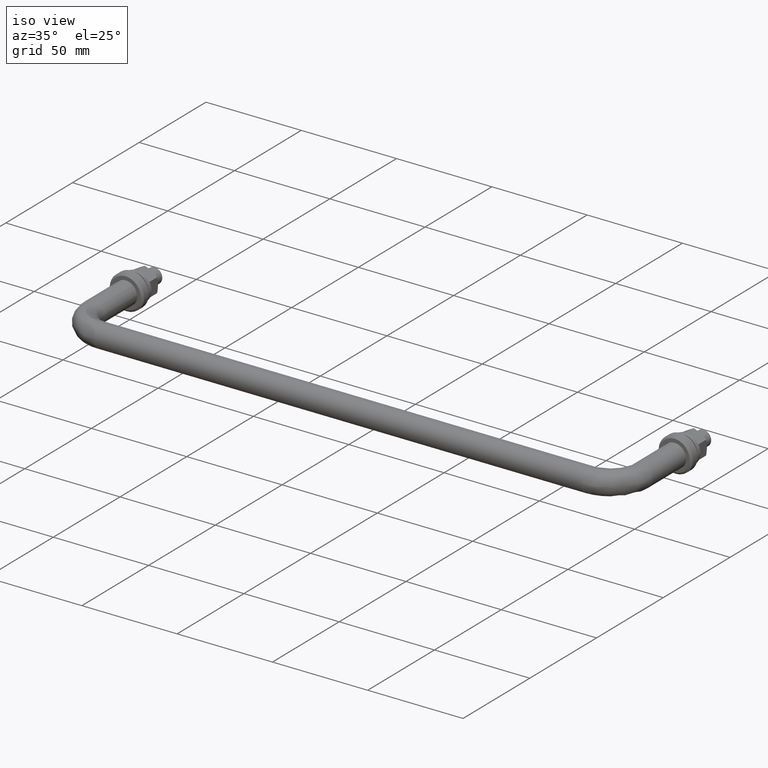
[diagram: clean part render]
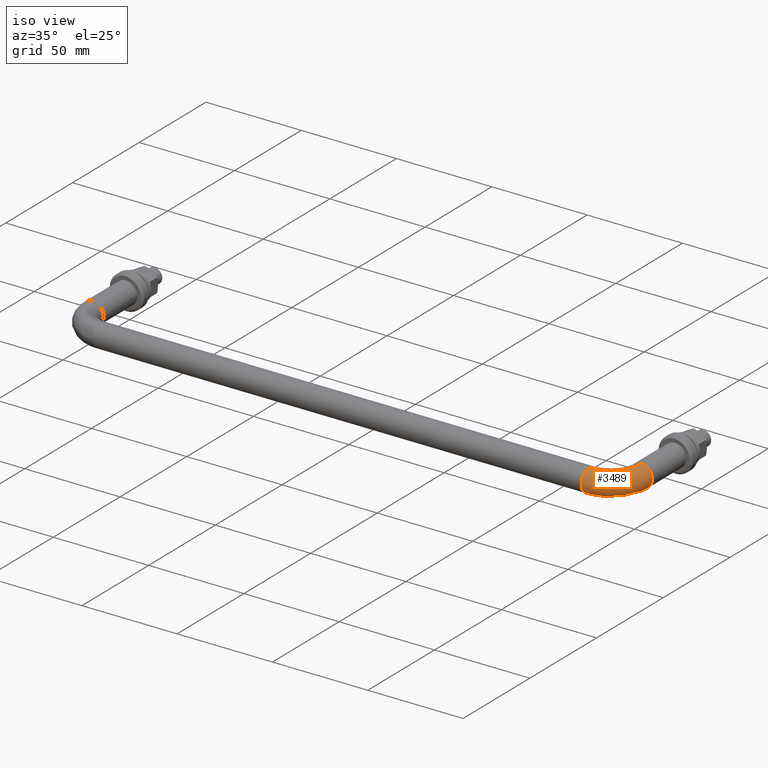
[diagram: same view with one face highlighted and labeled with its STEP entity id]
A machine part, iso view. The second image highlights one B-rep face of the part: STEP entity #3489.
In plain terms, the highlighted face is a freeform B-spline surface patch.
Its self-contained STEP definition (entity closure, byte-faithful):
#2734=CARTESIAN_POINT('',(287.924603757332190,-28.000000002493820,-5.999526265180574));
#2735=VERTEX_POINT('',#2734);
#2736=CARTESIAN_POINT('',(291.735087819832700,-28.0,-4.695648941108911));
#2737=VERTEX_POINT('',#2736);
#2738=CARTESIAN_POINT('',(287.924603757332190,-28.000000002493820,-5.999526265180574));
#2739=CARTESIAN_POINT('',(287.962300388680550,-28.000000000000007,-6.0));
#2740=CARTESIAN_POINT('',(288.0,-28.0,-6.0));
#2741=CARTESIAN_POINT('',(290.095293800539310,-28.000000000000007,-6.0));
#2742=CARTESIAN_POINT('',(291.735087819832700,-28.000000000000007,-4.695648941108911));
#2750=(BOUNDED_CURVE()B_SPLINE_CURVE(2,(#2738,#2739,#2740,#2741,#2742),.UNSPECIFIED.,.F.,.U.)B_SPLINE_CURVE_WITH_KNOTS((3,2,3),(0.247784295724289,0.250000000000000,0.357863877391897),.UNSPECIFIED.)CURVE()GEOMETRIC_REPRESENTATION_ITEM()RATIONAL_B_SPLINE_CURVE((0.994854295189584,0.997404140970993,1.0,0.873629607027950,0.856305618643925))REPRESENTATION_ITEM(''));
#2751=EDGE_CURVE('',#2735,#2737,#2750,.T.);
#2848=CARTESIAN_POINT('',(294.0,-28.0,0.0));
#2849=VERTEX_POINT('',#2848);
#2850=CARTESIAN_POINT('',(291.735087819832700,-28.000000000000004,-4.695648941108912));
#2851=CARTESIAN_POINT('',(294.0,-27.999999999999996,-2.894056444894390));
#2852=CARTESIAN_POINT('',(294.0,-28.0,0.0));
#2860=(BOUNDED_CURVE()B_SPLINE_CURVE(2,(#2850,#2851,#2852),.UNSPECIFIED.,.F.,.U.)B_SPLINE_CURVE_WITH_KNOTS((3,3),(0.357863877391897,0.500000000000000),.UNSPECIFIED.)CURVE()GEOMETRIC_REPRESENTATION_ITEM()RATIONAL_B_SPLINE_CURVE((0.856305618643925,0.833477174158597,1.0))REPRESENTATION_ITEM(''));
#2861=EDGE_CURVE('',#2737,#2849,#2860,.T.);
#2895=CARTESIAN_POINT('',(288.418399516672080,-28.000000001374751,5.985394042537922));
#2896=VERTEX_POINT('',#2895);
#2912=CARTESIAN_POINT('',(294.0,-28.0,0.0));
#2913=CARTESIAN_POINT('',(294.000000000000060,-28.000000000000007,5.595221070068924));
#2914=CARTESIAN_POINT('',(288.418399516672140,-28.000000001374747,5.985394042537923));
#2922=(BOUNDED_CURVE()B_SPLINE_CURVE(2,(#2912,#2913,#2914),.UNSPECIFIED.,.F.,.U.)B_SPLINE_CURVE_WITH_KNOTS((3,3),(0.500000000000000,0.737833686120246),.UNSPECIFIED.)CURVE()GEOMETRIC_REPRESENTATION_ITEM()RATIONAL_B_SPLINE_CURVE((1.0,0.721360504519892,0.972879875509541))REPRESENTATION_ITEM(''));
#2923=EDGE_CURVE('',#2849,#2896,#2922,.T.);
#2950=CARTESIAN_POINT('',(271.999999999770130,-43.924603759905253,-5.999526265212910));
#2951=VERTEX_POINT('',#2950);
#2952=CARTESIAN_POINT('',(272.0,-48.467994806515627,-4.004625127143502));
#2953=VERTEX_POINT('',#2952);
#2954=CARTESIAN_POINT('',(271.999999999770180,-43.924603759905246,-5.999526265212910));
#2955=CARTESIAN_POINT('',(272.000000000000060,-43.962300391253926,-6.0));
#2956=CARTESIAN_POINT('',(272.0,-44.0,-6.0));
#2957=CARTESIAN_POINT('',(272.0,-46.679557554471145,-6.0));
#2958=CARTESIAN_POINT('',(272.000000000000060,-48.467994806515641,-4.004625127143502));
#2966=(BOUNDED_CURVE()B_SPLINE_CURVE(2,(#2954,#2955,#2956,#2957,#2958),.UNSPECIFIED.,.F.,.U.)B_SPLINE_CURVE_WITH_KNOTS((3,2,3),(0.247784295875141,0.250000000000000,0.383245959685833),.UNSPECIFIED.)CURVE()GEOMETRIC_REPRESENTATION_ITEM()RATIONAL_B_SPLINE_CURVE((0.994854295536787,0.997404141147727,1.0,0.843892647894915,0.854190687351881))REPRESENTATION_ITEM(''));
#2967=EDGE_CURVE('',#2951,#2953,#2966,.T.);
#3079=CARTESIAN_POINT('',(272.0,-49.999999999999993,0.0));
#3080=VERTEX_POINT('',#3079);
#3081=CARTESIAN_POINT('',(272.000000000000060,-48.467994806515641,-4.004625127143502));
#3082=CARTESIAN_POINT('',(271.999999999999940,-50.0,-2.295353714534703));
#3083=CARTESIAN_POINT('',(272.0,-49.999999999999993,0.0));
#3091=(BOUNDED_CURVE()B_SPLINE_CURVE(2,(#3081,#3082,#3083),.UNSPECIFIED.,.F.,.U.)B_SPLINE_CURVE_WITH_KNOTS((3,3),(0.383245959685833,0.500000000000000),.UNSPECIFIED.)CURVE()GEOMETRIC_REPRESENTATION_ITEM()RATIONAL_B_SPLINE_CURVE((0.854190687351881,0.863214133291632,1.0))REPRESENTATION_ITEM(''));
#3092=EDGE_CURVE('',#2953,#3080,#3091,.T.);
#3094=CARTESIAN_POINT('',(272.000000003291400,-44.418399524233124,5.985394042009387));
#3095=VERTEX_POINT('',#3094);
#3096=CARTESIAN_POINT('',(272.0,-49.999999999999993,0.0));
#3097=CARTESIAN_POINT('',(272.0,-49.999999999999986,5.595221055898364));
#3098=CARTESIAN_POINT('',(272.000000003291400,-44.418399524233124,5.985394042009387));
#3106=(BOUNDED_CURVE()B_SPLINE_CURVE(2,(#3096,#3097,#3098),.UNSPECIFIED.,.F.,.U.)B_SPLINE_CURVE_WITH_KNOTS((3,3),(0.500000000000000,0.737833685685740),.UNSPECIFIED.)CURVE()GEOMETRIC_REPRESENTATION_ITEM()RATIONAL_B_SPLINE_CURVE((1.0,0.721360505028947,0.972879874590524))REPRESENTATION_ITEM(''));
#3107=EDGE_CURVE('',#3080,#3095,#3106,.T.);
#3418=CARTESIAN_POINT('',(271.999999999770180,-43.924603759905239,-5.999526265212911));
#3419=CARTESIAN_POINT('',(287.924603755712270,-43.924603761159759,-5.999526265222896));
#3420=CARTESIAN_POINT('',(287.924603757332140,-28.000000002493827,-5.999526265180575));
#3428=(BOUNDED_CURVE()B_SPLINE_CURVE(2,(#3418,#3419,#3420),.UNSPECIFIED.,.F.,.U.)B_SPLINE_CURVE_WITH_KNOTS((3,3),(-1.734750791688408,-0.265249208667046),.UNSPECIFIED.)CURVE()GEOMETRIC_REPRESENTATION_ITEM()RATIONAL_B_SPLINE_CURVE((0.889029723587076,0.628638946269655,0.889029723461105))REPRESENTATION_ITEM(''));
#3429=EDGE_CURVE('',#2951,#2735,#3428,.T.);
#3434=CARTESIAN_POINT('',(272.000000003291350,-44.418399524233138,5.985394042009387));
#3435=CARTESIAN_POINT('',(288.418399506703050,-44.418399502869917,5.985394043042592));
#3436=CARTESIAN_POINT('',(288.418399516672200,-28.000000001374751,5.985394042537922));
#3444=(BOUNDED_CURVE()B_SPLINE_CURVE(2,(#3434,#3435,#3436),.UNSPECIFIED.,.F.,.U.)B_SPLINE_CURVE_WITH_KNOTS((3,3),(-1.734750791241791,-0.265249208515610),.UNSPECIFIED.)CURVE()GEOMETRIC_REPRESENTATION_ITEM()RATIONAL_B_SPLINE_CURVE((0.869031711730937,0.614498216635452,0.869031711814979))REPRESENTATION_ITEM(''));
#3445=EDGE_CURVE('',#3095,#2896,#3444,.T.);
#3450=CARTESIAN_POINT('',(270.898496343536980,-43.802174097358787,-5.998469559147148));
#3451=CARTESIAN_POINT('',(289.068746967877930,-45.068746492919786,-5.998469559147148));
#3452=CARTESIAN_POINT('',(287.802174066708120,-26.898495903822617,-5.998469559147147));
#3453=CARTESIAN_POINT('',(270.895581321034680,-43.843993017168465,-5.998996374081743));
#3454=CARTESIAN_POINT('',(289.113917749841620,-45.113917273626370,-5.998996374081743));
#3455=CARTESIAN_POINT('',(287.843992986436720,-26.895580880156615,-5.998996374081742));
#3456=CARTESIAN_POINT('',(270.475459634616020,-49.871059738107867,-6.074922504523010));
#3457=CARTESIAN_POINT('',(295.624064783054280,-51.624064125686573,-6.074922504523014));
#3458=CARTESIAN_POINT('',(293.871059695685740,-26.475459026027774,-6.074922504523012));
#3459=CARTESIAN_POINT('',(270.470216798978920,-49.946273470730873,-0.075396239300116));
#3460=CARTESIAN_POINT('',(295.705307032553720,-51.705306372925385,-0.075396239300116));
#3461=CARTESIAN_POINT('',(293.946273428162900,-26.470216188297815,-0.075396239300116));
#3462=CARTESIAN_POINT('',(270.465265709110210,-50.017301817861174,5.590277027038185));
#3463=CARTESIAN_POINT('',(295.782028430333920,-51.782027768570600,5.590277027038183));
#3464=CARTESIAN_POINT('',(294.017301775155370,-26.465265096452683,5.590277027038184));
#3465=CARTESIAN_POINT('',(270.861259581332380,-44.336372777250617,5.988356997553216));
#3466=CARTESIAN_POINT('',(289.645762639358910,-45.645762148344666,5.988356997553214));
#3467=CARTESIAN_POINT('',(288.336372745563840,-26.861259126753342,5.988356997553215));
#3468=CARTESIAN_POINT('',(270.864191143462790,-44.294316579895465,5.991304003172091));
#3469=CARTESIAN_POINT('',(289.600335561625060,-45.600335071874781,5.991304003172091));
#3470=CARTESIAN_POINT('',(288.294316548290230,-26.864190690054116,5.991304003172090));
#3478=(BOUNDED_SURFACE()B_SPLINE_SURFACE(2,2,((#3450,#3453,#3456,#3459,#3462,#3465,#3468),(#3451,#3454,#3457,#3460,#3463,#3466,#3469),(#3452,#3455,#3458,#3461,#3464,#3467,#3470)),.UNSPECIFIED.,.F.,.F.,.U.)B_SPLINE_SURFACE_WITH_KNOTS((3,3),(3,1,2,1,3),(0.0,40.091362849880248),(0.0,0.099095437546199,10.040220934500580,19.583701411576790,19.681285117269859),.UNSPECIFIED.)GEOMETRIC_REPRESENTATION_ITEM()RATIONAL_B_SPLINE_SURFACE(((0.921692850087177,0.919017472664055,0.647951709431553,0.916342095240933,0.658687324863928,0.898153512219238,0.900577310827703),(0.604837867710777,0.603082218227579,0.425202094466791,0.601326568744382,0.432247073437895,0.589390766301646,0.590981323483430),(0.921692861771873,0.919017484314834,0.647951717645915,0.916342106857795,0.658687333214390,0.898153523605515,0.900577322244708)))REPRESENTATION_ITEM('')SURFACE());
#3479=ORIENTED_EDGE('',*,*,#2923,.T.);
#3480=ORIENTED_EDGE('',*,*,#3445,.F.);
#3481=ORIENTED_EDGE('',*,*,#3107,.F.);
#3482=ORIENTED_EDGE('',*,*,#3092,.F.);
#3483=ORIENTED_EDGE('',*,*,#2967,.F.);
#3484=ORIENTED_EDGE('',*,*,#3429,.T.);
#3485=ORIENTED_EDGE('',*,*,#2751,.T.);
#3486=ORIENTED_EDGE('',*,*,#2861,.T.);
#3487=EDGE_LOOP('',(#3479,#3480,#3481,#3482,#3483,#3484,#3485,#3486));
#3488=FACE_OUTER_BOUND('',#3487,.T.);
#3489=ADVANCED_FACE('',(#3488),#3478,.T.);